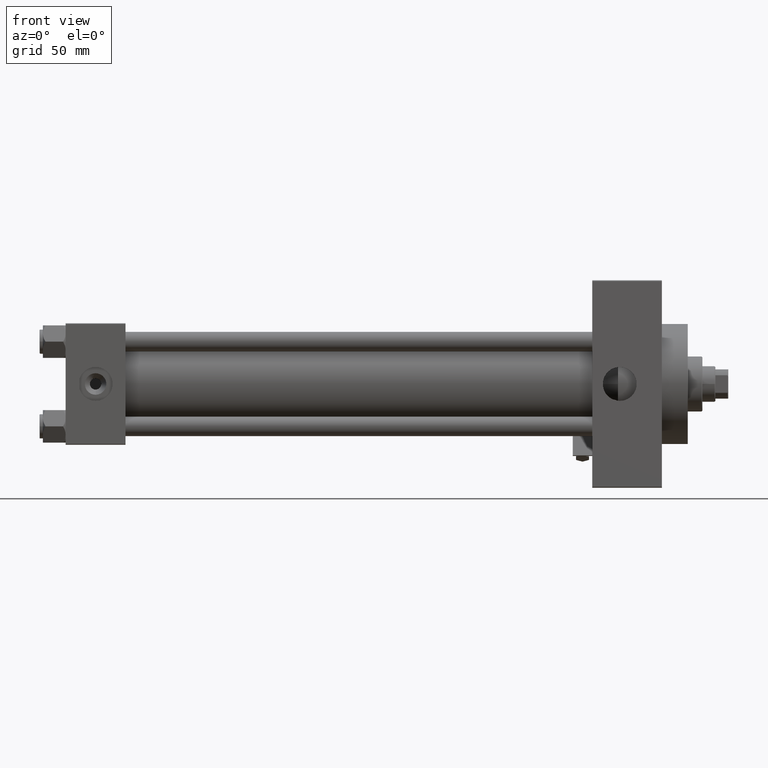
[diagram: clean part render]
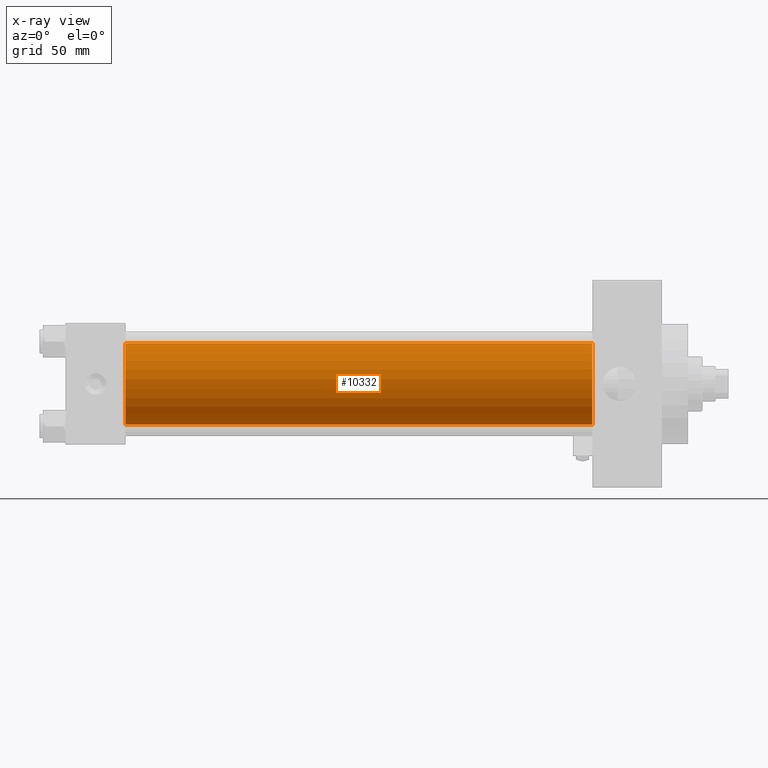
[diagram: x-ray — body ghosted, one internal face saturated and labeled with its STEP entity id]
A machine part, front view, then the same camera in x-ray: the body is ghosted and one INTERNAL B-rep face — a face not visible from any outside direction — is saturated and labeled: STEP entity #10332.
In plain terms, the highlighted cylindrical surface (partial cylindrical patch) has radius 25 mm, axis along (-1, -0, -0).
Its self-contained STEP definition (entity closure, byte-faithful):
#1004 = CIRCLE ( 'NONE', #26964, 25.00000000000000000 ) ;
#2577 = DIRECTION ( 'NONE',  ( 1.000000000000000000, 0.000000000000000000, 0.000000000000000000 ) ) ;
#2669 = LINE ( 'NONE', #26057, #10516 ) ;
#5248 = DIRECTION ( 'NONE',  ( 0.000000000000000000, 0.000000000000000000, 1.000000000000000000 ) ) ;
#5999 = DIRECTION ( 'NONE',  ( -1.000000000000000000, -0.000000000000000000, -0.000000000000000000 ) ) ;
#6209 = DIRECTION ( 'NONE',  ( 0.000000000000000000, 0.000000000000000000, -1.000000000000000000 ) ) ;
#8177 = DIRECTION ( 'NONE',  ( -1.000000000000000000, -0.000000000000000000, -0.000000000000000000 ) ) ;
#10332 = ADVANCED_FACE ( 'NONE', ( #16930 ), #40077, .F. ) ;
#10516 = VECTOR ( 'NONE', #18171, 1000.000000000000000 ) ;
#10969 = LINE ( 'NONE', #34640, #49668 ) ;
#13278 = CIRCLE ( 'NONE', #46623, 25.00000000000000000 ) ;
#13713 = EDGE_CURVE ( 'NONE', #29377, #33332, #10969, .T. ) ;
#15426 = AXIS2_PLACEMENT_3D ( 'NONE', #44158, #5999, #5248 ) ;
#16930 = FACE_OUTER_BOUND ( 'NONE', #38225, .T. ) ;
#17227 = ORIENTED_EDGE ( 'NONE', *, *, #30718, .T. ) ;
#18171 = DIRECTION ( 'NONE',  ( -1.000000000000000000, -0.000000000000000000, -0.000000000000000000 ) ) ;
#18710 = EDGE_CURVE ( 'NONE', #33332, #48860, #1004, .T. ) ;
#18829 = DIRECTION ( 'NONE',  ( 0.000000000000000000, 0.000000000000000000, -1.000000000000000000 ) ) ;
#21894 = CARTESIAN_POINT ( 'NONE',  ( 324.9999999999999432, -2.602085213965210642E-15, 0.000000000000000000 ) ) ;
#23000 = CARTESIAN_POINT ( 'NONE',  ( 37.00000000000000000, -2.602085213965210642E-15, 25.00000000000000000 ) ) ;
#24943 = ORIENTED_EDGE ( 'NONE', *, *, #18710, .F. ) ;
#26057 = CARTESIAN_POINT ( 'NONE',  ( 324.9999999999999432, 4.595317839031724996E-16, -25.00000000000000000 ) ) ;
#26277 = DIRECTION ( 'NONE',  ( 1.000000000000000000, 0.000000000000000000, 0.000000000000000000 ) ) ;
#26964 = AXIS2_PLACEMENT_3D ( 'NONE', #45627, #26277, #6209 ) ;
#29377 = VERTEX_POINT ( 'NONE', #48477 ) ;
#29485 = CARTESIAN_POINT ( 'NONE',  ( 37.00000000000000000, 4.595317839031724996E-16, -25.00000000000000000 ) ) ;
#30718 = EDGE_CURVE ( 'NONE', #29377, #43768, #13278, .T. ) ;
#33332 = VERTEX_POINT ( 'NONE', #23000 ) ;
#34640 = CARTESIAN_POINT ( 'NONE',  ( 324.9999999999999432, -2.602085213965210642E-15, 25.00000000000000000 ) ) ;
#37278 = ORIENTED_EDGE ( 'NONE', *, *, #47210, .T. ) ;
#38225 = EDGE_LOOP ( 'NONE', ( #17227, #37278, #24943, #39448 ) ) ;
#39448 = ORIENTED_EDGE ( 'NONE', *, *, #13713, .F. ) ;
#39503 = CARTESIAN_POINT ( 'NONE',  ( 324.9999999999999432, 4.595317839031724996E-16, -25.00000000000000000 ) ) ;
#40077 = CYLINDRICAL_SURFACE ( 'NONE', #15426, 25.00000000000000000 ) ;
#43768 = VERTEX_POINT ( 'NONE', #39503 ) ;
#44158 = CARTESIAN_POINT ( 'NONE',  ( 324.9999999999999432, -2.602085213965210642E-15, 0.000000000000000000 ) ) ;
#45627 = CARTESIAN_POINT ( 'NONE',  ( 37.00000000000000000, -2.602085213965210642E-15, 0.000000000000000000 ) ) ;
#46623 = AXIS2_PLACEMENT_3D ( 'NONE', #21894, #2577, #18829 ) ;
#47210 = EDGE_CURVE ( 'NONE', #43768, #48860, #2669, .T. ) ;
#48477 = CARTESIAN_POINT ( 'NONE',  ( 324.9999999999999432, -2.602085213965210642E-15, 25.00000000000000000 ) ) ;
#48860 = VERTEX_POINT ( 'NONE', #29485 ) ;
#49668 = VECTOR ( 'NONE', #8177, 1000.000000000000000 ) ;